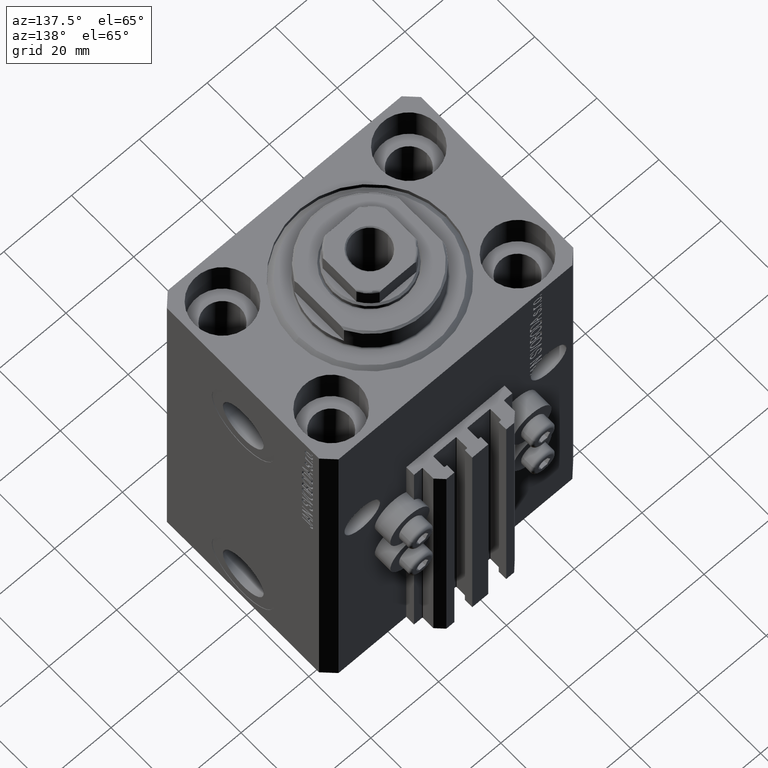
[diagram: clean part render]
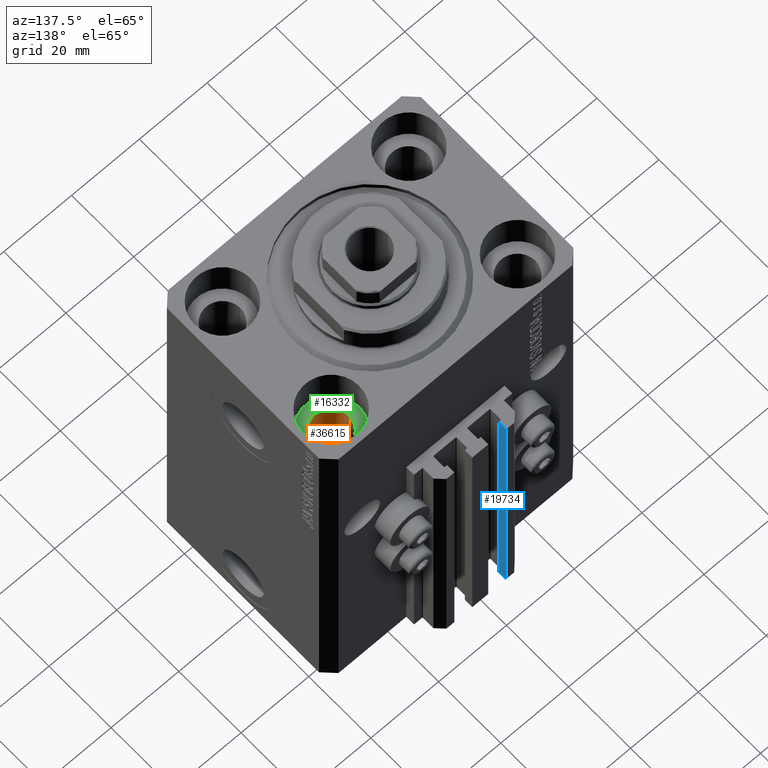
[diagram: same view with three faces highlighted in distinct colors, each labeled with its STEP entity id]
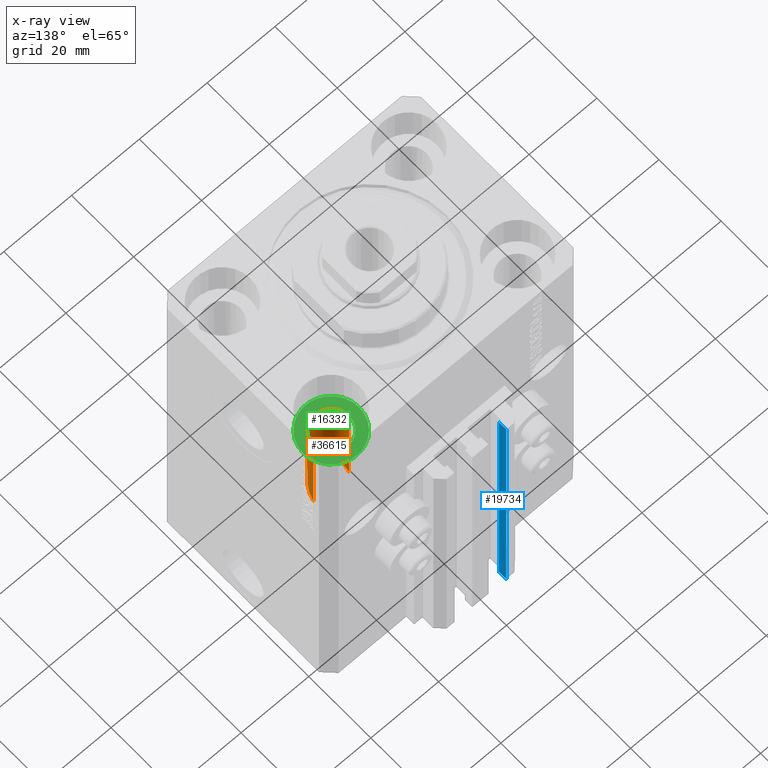
[diagram: x-ray of the same camera — body ghosted, the three highlighted faces saturated]
A machine part, auxiliary view with three faces highlighted in distinct colors.
The next image is the same camera in x-ray (body ghosted, the three faces saturated) — at least one of them is partly hidden behind the body in this view.
Their STEP definitions:

[orange] entity #36615 — the highlighted cylindrical surface (edge-blend (fillet) strip) has radius 5.25 mm, axis along (0, 0, 1).
#1106 = CARTESIAN_POINT ( 'NONE',  ( 32.74999999999999289, 17.50000000000001066, -11.00000000000000000 ) ) ;
#1323 = VECTOR ( 'NONE', #38650, 1000.000000000000000 ) ;
#1445 = CARTESIAN_POINT ( 'NONE',  ( 32.74999999999999289, 7.000000000000031974, -29.50000000000001066 ) ) ;
#1923 = EDGE_LOOP ( 'NONE', ( #15342, #18398, #9887, #30685 ) ) ;
#2149 = AXIS2_PLACEMENT_3D ( 'NONE', #27690, #42391, #42614 ) ;
#4717 = EDGE_CURVE ( 'NONE', #10666, #5995, #24300, .T. ) ;
#4843 = VECTOR ( 'NONE', #45863, 1000.000000000000000 ) ;
#5995 = VERTEX_POINT ( 'NONE', #1106 ) ;
#9887 = ORIENTED_EDGE ( 'NONE', *, *, #34637, .T. ) ;
#10666 = VERTEX_POINT ( 'NONE', #38272 ) ;
#10812 = FACE_OUTER_BOUND ( 'NONE', #1923, .T. ) ;
#14425 = CARTESIAN_POINT ( 'NONE',  ( 22.25000000000000000, 17.50000000000001066, -11.00000000000000000 ) ) ;
#15342 = ORIENTED_EDGE ( 'NONE', *, *, #22751, .T. ) ;
#17558 = CARTESIAN_POINT ( 'NONE',  ( 22.25000000000000000, 17.50000000000001066, -110.0000000000000000 ) ) ;
#18398 = ORIENTED_EDGE ( 'NONE', *, *, #32164, .T. ) ;
#18625 = CYLINDRICAL_SURFACE ( 'NONE', #39979, 5.249999999999997335 ) ;
#22572 = CIRCLE ( 'NONE', #2149, 5.249999999999997335 ) ;
#22751 = EDGE_CURVE ( 'NONE', #10666, #44562, #44516, .T. ) ;
#22774 = CARTESIAN_POINT ( 'NONE',  ( 22.25000000000001066, 7.000000000000031974, -29.50000000000001066 ) ) ;
#22967 = CARTESIAN_POINT ( 'NONE',  ( 22.25000000000000711, 17.50000000000001421, -39.99999999999999289 ) ) ;
#23953 = LINE ( 'NONE', #17558, #1323 ) ;
#24300 = LINE ( 'NONE', #42533, #4843 ) ;
#27690 = CARTESIAN_POINT ( 'NONE',  ( 27.49999999999999645, 17.50000000000001066, -11.00000000000000000 ) ) ;
#29862 = CARTESIAN_POINT ( 'NONE',  ( 22.25000000000000711, 17.50000000000001421, -39.99999999999999289 ) ) ;
#30685 = ORIENTED_EDGE ( 'NONE', *, *, #4717, .F. ) ;
#32164 = EDGE_CURVE ( 'NONE', #44562, #39609, #23953, .T. ) ;
#32343 = CARTESIAN_POINT ( 'NONE',  ( 27.49999999999999645, 17.50000000000001066, -110.0000000000000000 ) ) ;
#34637 = EDGE_CURVE ( 'NONE', #39609, #5995, #22572, .T. ) ;
#36375 = DIRECTION ( 'NONE',  ( 1.000000000000000000, 0.000000000000000000, 0.000000000000000000 ) ) ;
#36615 = ADVANCED_FACE ( 'NONE', ( #10812 ), #18625, .F. ) ;
#37444 = CARTESIAN_POINT ( 'NONE',  ( 32.74999999999999289, 17.50000000000001421, -39.99999999999999289 ) ) ;
#38272 = CARTESIAN_POINT ( 'NONE',  ( 32.74999999999999289, 17.50000000000001421, -39.99999999999999289 ) ) ;
#38650 = DIRECTION ( 'NONE',  ( -0.000000000000000000, -0.000000000000000000, 1.000000000000000000 ) ) ;
#39609 = VERTEX_POINT ( 'NONE', #14425 ) ;
#39932 = DIRECTION ( 'NONE',  ( -0.000000000000000000, -0.000000000000000000, 1.000000000000000000 ) ) ;
#39979 = AXIS2_PLACEMENT_3D ( 'NONE', #32343, #39932, #36375 ) ;
#42391 = DIRECTION ( 'NONE',  ( 0.000000000000000000, 0.000000000000000000, 1.000000000000000000 ) ) ;
#42533 = CARTESIAN_POINT ( 'NONE',  ( 32.74999999999999289, 17.50000000000001066, -110.0000000000000000 ) ) ;
#42614 = DIRECTION ( 'NONE',  ( 1.000000000000000000, 0.000000000000000000, 0.000000000000000000 ) ) ;
#44516 =( BOUNDED_CURVE ( )  B_SPLINE_CURVE ( 3, ( #37444, #1445, #22774, #29862 ),
 .UNSPECIFIED., .F., .F. ) 
 B_SPLINE_CURVE_WITH_KNOTS ( ( 4, 4 ),
 ( 4.712388980384689674, 7.853981633974482790 ),
 .UNSPECIFIED. ) 
 CURVE ( )  GEOMETRIC_REPRESENTATION_ITEM ( )  RATIONAL_B_SPLINE_CURVE ( ( 1.000000000000000000, 0.3333333333333333703, 0.3333333333333333703, 1.000000000000000000 ) ) 
 REPRESENTATION_ITEM ( '' )  );
#44562 = VERTEX_POINT ( 'NONE', #22967 ) ;
#45863 = DIRECTION ( 'NONE',  ( -0.000000000000000000, -0.000000000000000000, 1.000000000000000000 ) ) ;

[blue] entity #19734 — the highlighted planar face has unit normal (1, 0, 0).
#1889 = CARTESIAN_POINT ( 'NONE',  ( -7.650000000000000355, 33.09999999999999432, -110.0000000000000000 ) ) ;
#1904 = DIRECTION ( 'NONE',  ( 0.000000000000000000, 0.000000000000000000, 1.000000000000000000 ) ) ;
#1973 = VERTEX_POINT ( 'NONE', #36383 ) ;
#3155 = EDGE_CURVE ( 'NONE', #20561, #21464, #5229, .T. ) ;
#4156 = ORIENTED_EDGE ( 'NONE', *, *, #3155, .F. ) ;
#4945 = CARTESIAN_POINT ( 'NONE',  ( -7.650000000000000355, 33.09999999999999432, -110.0000000000000000 ) ) ;
#5176 = DIRECTION ( 'NONE',  ( 1.000000000000000000, 0.000000000000000000, 0.000000000000000000 ) ) ;
#5229 = LINE ( 'NONE', #41704, #20784 ) ;
#5427 = CARTESIAN_POINT ( 'NONE',  ( -7.650000000000000355, 35.50000000000000000, -110.0000000000000000 ) ) ;
#6605 = EDGE_CURVE ( 'NONE', #1973, #33625, #17279, .T. ) ;
#7202 = DIRECTION ( 'NONE',  ( 0.000000000000000000, 1.000000000000000000, 0.000000000000000000 ) ) ;
#8499 = FACE_OUTER_BOUND ( 'NONE', #39530, .T. ) ;
#10608 = CARTESIAN_POINT ( 'NONE',  ( -7.650000000000000355, 33.09999999999999432, -110.0000000000000000 ) ) ;
#12948 = EDGE_CURVE ( 'NONE', #20561, #1973, #38125, .T. ) ;
#15094 = EDGE_CURVE ( 'NONE', #21464, #33625, #46770, .T. ) ;
#17279 = LINE ( 'NONE', #5427, #29111 ) ;
#19734 = ADVANCED_FACE ( 'NONE', ( #8499 ), #22482, .T. ) ;
#20561 = VERTEX_POINT ( 'NONE', #10608 ) ;
#20784 = VECTOR ( 'NONE', #1904, 1000.000000000000000 ) ;
#20975 = ORIENTED_EDGE ( 'NONE', *, *, #12948, .T. ) ;
#21464 = VERTEX_POINT ( 'NONE', #43998 ) ;
#22482 = PLANE ( 'NONE',  #22635 ) ;
#22635 = AXIS2_PLACEMENT_3D ( 'NONE', #4945, #5176, #26732 ) ;
#24827 = CARTESIAN_POINT ( 'NONE',  ( -7.650000000000000355, 35.50000000000000000, -33.00000000000000000 ) ) ;
#26732 = DIRECTION ( 'NONE',  ( 0.000000000000000000, 0.000000000000000000, -1.000000000000000000 ) ) ;
#27001 = DIRECTION ( 'NONE',  ( 0.000000000000000000, 1.000000000000000000, 0.000000000000000000 ) ) ;
#29111 = VECTOR ( 'NONE', #31699, 1000.000000000000000 ) ;
#31699 = DIRECTION ( 'NONE',  ( 0.000000000000000000, 0.000000000000000000, 1.000000000000000000 ) ) ;
#33625 = VERTEX_POINT ( 'NONE', #24827 ) ;
#36383 = CARTESIAN_POINT ( 'NONE',  ( -7.650000000000000355, 35.50000000000000000, -110.0000000000000000 ) ) ;
#38125 = LINE ( 'NONE', #1889, #42184 ) ;
#38971 = ORIENTED_EDGE ( 'NONE', *, *, #6605, .T. ) ;
#39530 = EDGE_LOOP ( 'NONE', ( #39579, #4156, #20975, #38971 ) ) ;
#39579 = ORIENTED_EDGE ( 'NONE', *, *, #15094, .F. ) ;
#41497 = VECTOR ( 'NONE', #7202, 1000.000000000000000 ) ;
#41704 = CARTESIAN_POINT ( 'NONE',  ( -7.650000000000000355, 33.09999999999999432, -110.0000000000000000 ) ) ;
#42184 = VECTOR ( 'NONE', #27001, 1000.000000000000000 ) ;
#43449 = CARTESIAN_POINT ( 'NONE',  ( -7.650000000000000355, 33.09999999999999432, -33.00000000000000000 ) ) ;
#43998 = CARTESIAN_POINT ( 'NONE',  ( -7.650000000000000355, 33.09999999999999432, -33.00000000000000000 ) ) ;
#46770 = LINE ( 'NONE', #43449, #41497 ) ;

[green] entity #16332 — the highlighted planar face has unit normal (0, 0, 1).
#1106 = CARTESIAN_POINT ( 'NONE',  ( 32.74999999999999289, 17.50000000000001066, -11.00000000000000000 ) ) ;
#2149 = AXIS2_PLACEMENT_3D ( 'NONE', #27690, #42391, #42614 ) ;
#2512 = DIRECTION ( 'NONE',  ( 0.000000000000000000, 0.000000000000000000, 1.000000000000000000 ) ) ;
#2964 = CIRCLE ( 'NONE', #30179, 8.249999999999992895 ) ;
#5328 = DIRECTION ( 'NONE',  ( 1.000000000000000000, 0.000000000000000000, 0.000000000000000000 ) ) ;
#5995 = VERTEX_POINT ( 'NONE', #1106 ) ;
#9620 = CARTESIAN_POINT ( 'NONE',  ( 27.49999999999999645, 17.50000000000001066, -11.00000000000000000 ) ) ;
#12492 = DIRECTION ( 'NONE',  ( 0.000000000000000000, 0.000000000000000000, 1.000000000000000000 ) ) ;
#13240 = EDGE_CURVE ( 'NONE', #16712, #14782, #36890, .T. ) ;
#14091 = DIRECTION ( 'NONE',  ( 1.000000000000000000, 0.000000000000000000, -0.000000000000000000 ) ) ;
#14425 = CARTESIAN_POINT ( 'NONE',  ( 22.25000000000000000, 17.50000000000001066, -11.00000000000000000 ) ) ;
#14563 = ORIENTED_EDGE ( 'NONE', *, *, #28909, .F. ) ;
#14782 = VERTEX_POINT ( 'NONE', #20854 ) ;
#14807 = DIRECTION ( 'NONE',  ( 1.000000000000000000, 0.000000000000000000, 0.000000000000000000 ) ) ;
#16332 = ADVANCED_FACE ( 'NONE', ( #20520, #34949 ), #42070, .T. ) ;
#16712 = VERTEX_POINT ( 'NONE', #34073 ) ;
#18364 = CARTESIAN_POINT ( 'NONE',  ( 27.49999999999999645, 17.50000000000001066, -11.00000000000000000 ) ) ;
#20520 = FACE_BOUND ( 'NONE', #27242, .T. ) ;
#20854 = CARTESIAN_POINT ( 'NONE',  ( 35.74999999999999289, 17.50000000000001066, -11.00000000000000000 ) ) ;
#21750 = AXIS2_PLACEMENT_3D ( 'NONE', #9620, #2512, #14091 ) ;
#22101 = ORIENTED_EDGE ( 'NONE', *, *, #34907, .T. ) ;
#22572 = CIRCLE ( 'NONE', #2149, 5.249999999999997335 ) ;
#26182 = CIRCLE ( 'NONE', #29212, 5.249999999999997335 ) ;
#27116 = CARTESIAN_POINT ( 'NONE',  ( 27.49999999999999645, 17.50000000000001066, -11.00000000000000000 ) ) ;
#27242 = EDGE_LOOP ( 'NONE', ( #14563, #43680 ) ) ;
#27690 = CARTESIAN_POINT ( 'NONE',  ( 27.49999999999999645, 17.50000000000001066, -11.00000000000000000 ) ) ;
#27726 = ORIENTED_EDGE ( 'NONE', *, *, #13240, .T. ) ;
#28909 = EDGE_CURVE ( 'NONE', #5995, #39609, #26182, .T. ) ;
#29212 = AXIS2_PLACEMENT_3D ( 'NONE', #18364, #37067, #14807 ) ;
#30179 = AXIS2_PLACEMENT_3D ( 'NONE', #33784, #12492, #30251 ) ;
#30251 = DIRECTION ( 'NONE',  ( 1.000000000000000000, 0.000000000000000000, 0.000000000000000000 ) ) ;
#33784 = CARTESIAN_POINT ( 'NONE',  ( 27.49999999999999645, 17.50000000000001066, -11.00000000000000000 ) ) ;
#34073 = CARTESIAN_POINT ( 'NONE',  ( 19.25000000000000000, 17.50000000000001066, -11.00000000000000000 ) ) ;
#34637 = EDGE_CURVE ( 'NONE', #39609, #5995, #22572, .T. ) ;
#34907 = EDGE_CURVE ( 'NONE', #14782, #16712, #2964, .T. ) ;
#34949 = FACE_OUTER_BOUND ( 'NONE', #40755, .T. ) ;
#36890 = CIRCLE ( 'NONE', #38421, 8.249999999999992895 ) ;
#37067 = DIRECTION ( 'NONE',  ( 0.000000000000000000, 0.000000000000000000, 1.000000000000000000 ) ) ;
#37779 = DIRECTION ( 'NONE',  ( 0.000000000000000000, 0.000000000000000000, 1.000000000000000000 ) ) ;
#38421 = AXIS2_PLACEMENT_3D ( 'NONE', #27116, #37779, #5328 ) ;
#39609 = VERTEX_POINT ( 'NONE', #14425 ) ;
#40755 = EDGE_LOOP ( 'NONE', ( #22101, #27726 ) ) ;
#42070 = PLANE ( 'NONE',  #21750 ) ;
#42391 = DIRECTION ( 'NONE',  ( 0.000000000000000000, 0.000000000000000000, 1.000000000000000000 ) ) ;
#42614 = DIRECTION ( 'NONE',  ( 1.000000000000000000, 0.000000000000000000, 0.000000000000000000 ) ) ;
#43680 = ORIENTED_EDGE ( 'NONE', *, *, #34637, .F. ) ;